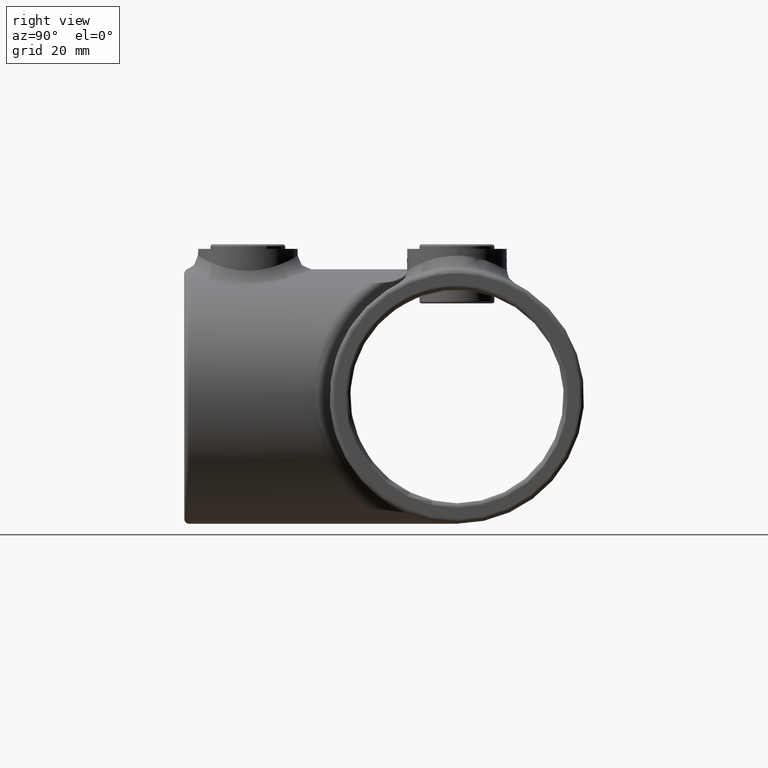
[diagram: clean part render]
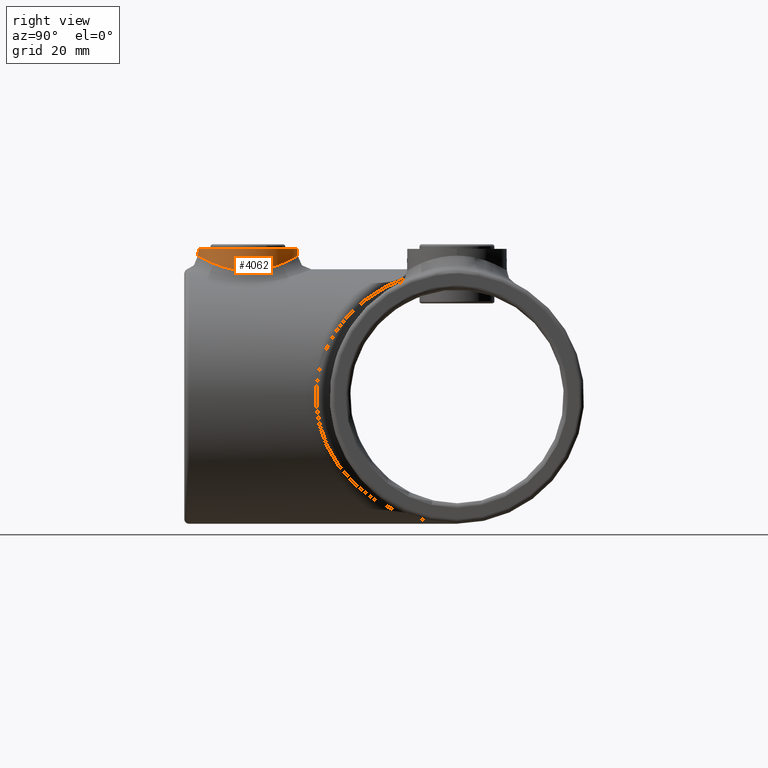
[diagram: same view with one face highlighted and labeled with its STEP entity id]
A machine part, right view. The second image highlights one B-rep face of the part: STEP entity #4062.
In plain terms, the highlighted cylindrical surface (bore or boss wall) has radius 11 mm, axis along (-0, -0, -1).
Its self-contained STEP definition (entity closure, byte-faithful):
#138 = B_SPLINE_CURVE_WITH_KNOTS ( 'NONE', 3,
 ( #4548, #1455, #1075, #2236, #3361, #2606, #4928, #3710, #1061, #3016, #4163, #2591, #3730, #1419, #1832, #1401, #3392, #2201, #4534, #4133, #4900, #2217, #4884, #2624, #4914, #4100, #1438, #4119, #685, #1786, #2170, #3765, #4864, #2560, #1800, #2185, #278, #244, #296, #2955, #4503, #4518, #2574, #637, #259, #2972, #652, #2988, #670, #1125, #3778, #2706, #762, #3796, #731, #3458, #2652, #4957, #4181, #1483, #4624, #1497, #2686, #3847, #4822, #4942, #2249, #1930, #3830, #1161, #4243, #747, #4993, #2314, #3409, #3443, #391, #1543, #4973, #3813, #1106, #4193, #3096, #2296, #1877, #3046, #782, #3082, #4228, #2264, #1091, #1911, #1860, #3062, #4563, #4209, #3424, #2636, #323, #372, #3028, #719, #4610, #4577 ),
 .UNSPECIFIED., .T., .F.,
 ( 4, 2, 2, 2, 2, 2, 2, 2, 2, 2, 2, 2, 2, 2, 2, 2, 2, 2, 2, 2, 2, 2, 2, 2, 2, 2, 2, 2, 2, 2, 2, 2, 2, 2, 2, 2, 2, 2, 2, 2, 2, 2, 2, 2, 2, 2, 2, 2, 2, 2, 2, 4 ),
 ( 0.000000000000000000, 0.001117589833589376341, 0.002235179667178752681, 0.003352769500768129456, 0.004470359334357505363, 0.006705539001536257177, 0.007823128835125630481, 0.008940718668715005521, 0.01117589833589375040, 0.01229348816948312370, 0.01341107800307249701, 0.01452866783666186684, 0.01564625767025124015, 0.01788143733742998676, 0.01899902717101936006, 0.02011661700460873337, 0.02235179667178747651, 0.02346938650537685675, 0.02458697633896623005, 0.02682215600614498013, 0.02905733567332372674, 0.03017492550691310352, 0.03129251534050248029, 0.03352769500768122690, 0.03464528484127060021, 0.03576287467485997351, 0.03688046450844935376, 0.03799805434203872706, 0.03911564417562810037, 0.04023323400921748061, 0.04246841367639624110, 0.04358600350998562828, 0.04470359334357500852, 0.04582118317716439571, 0.04693877301075378289, 0.04917395267793255031, 0.05029154251152193750, 0.05140913234511131774, 0.05252672217870069798, 0.05364431201229007823, 0.05587949167946885259, 0.05699708151305823284, 0.05811467134664762002, 0.06034985101382638745, 0.06146744084741577463, 0.06258503068100515487, 0.06482021034818392924, 0.06593780018177332336, 0.06705539001536270360, 0.06817297984895208385, 0.06929056968254147797, 0.07152574934972026621 ),
 .UNSPECIFIED. ) ;
#244 = CARTESIAN_POINT ( 'NONE',  ( 6.736393003228988263, 5.275344315972384734, 29.80077966393088928 ) ) ;
#259 = CARTESIAN_POINT ( 'NONE',  ( 10.00271630797711353, 9.409301304970862034, 28.26599336670144424 ) ) ;
#263 = EDGE_CURVE ( 'NONE', #2994, #2994, #138, .T. ) ;
#278 = CARTESIAN_POINT ( 'NONE',  ( 5.858282351825009115, 4.683070261025224390, 30.09246352538295355 ) ) ;
#296 = CARTESIAN_POINT ( 'NONE',  ( 7.279523470582170752, 5.722713202712196967, 29.59083671688397743 ) ) ;
#323 = CARTESIAN_POINT ( 'NONE',  ( -10.40099723035340062, 17.59889313069270855, 28.03191317973595176 ) ) ;
#362 = AXIS2_PLACEMENT_3D ( 'NONE', #3485, #4302, #1184 ) ;
#372 = CARTESIAN_POINT ( 'NONE',  ( -10.61636662274304221, 16.90267719243351152, 27.90082399764611409 ) ) ;
#391 = CARTESIAN_POINT ( 'NONE',  ( 1.460709701085554535, 24.90875411239322190, 30.94769925981424663 ) ) ;
#407 = EDGE_LOOP ( 'NONE', ( #4873 ) ) ;
#637 = CARTESIAN_POINT ( 'NONE',  ( 9.846700245738205126, 9.083623808879652373, 28.35490546973456460 ) ) ;
#652 = CARTESIAN_POINT ( 'NONE',  ( 10.63375338134312109, 11.09102641890647867, 27.89045404457614552 ) ) ;
#670 = CARTESIAN_POINT ( 'NONE',  ( 10.90852656195296078, 12.53752375838020860, 27.71730413719675568 ) ) ;
#685 = CARTESIAN_POINT ( 'NONE',  ( 0.7390362551965264926, 3.018577639999326490, 30.98929995297525153 ) ) ;
#719 = CARTESIAN_POINT ( 'NONE',  ( -10.92535819269619957, 15.47300610449268277, 27.70728167135543885 ) ) ;
#731 = CARTESIAN_POINT ( 'NONE',  ( 10.85245980519608011, 15.83297750561373007, 27.75307925416289834 ) ) ;
#747 = CARTESIAN_POINT ( 'NONE',  ( 3.930213740943125700, 24.28024477644219203, 30.59679268643579420 ) ) ;
#749 = FACE_OUTER_BOUND ( 'NONE', #4813, .T. ) ;
#762 = CARTESIAN_POINT ( 'NONE',  ( 10.98179991998642535, 14.73201847971274248, 27.67039568363643198 ) ) ;
#782 = CARTESIAN_POINT ( 'NONE',  ( -5.558211910831236224, 23.51881821504351677, 30.19195585208512256 ) ) ;
#1061 = CARTESIAN_POINT ( 'NONE',  ( -10.28107653602741323, 10.07185953651826793, 28.10375562734972021 ) ) ;
#1075 = CARTESIAN_POINT ( 'NONE',  ( -10.98089488546523107, 13.25520904395013133, 27.67097813196479450 ) ) ;
#1091 = CARTESIAN_POINT ( 'NONE',  ( -7.533655569704126975, 22.02292901475739129, 29.48178887579179630 ) ) ;
#1106 = CARTESIAN_POINT ( 'NONE',  ( -1.478716688698707316, 24.92435608861479324, 30.95620063257527477 ) ) ;
#1125 = CARTESIAN_POINT ( 'NONE',  ( 10.98176486420542908, 13.26813322425531538, 27.67041772405156763 ) ) ;
#1161 = CARTESIAN_POINT ( 'NONE',  ( 5.553547937286819725, 23.52182380606117817, 30.19345434854971444 ) ) ;
#1184 = DIRECTION ( 'NONE',  ( -1.000000000000000000, 0.000000000000000000, 0.000000000000000000 ) ) ;
#1323 = DIRECTION ( 'NONE',  ( 1.000000000000000000, 0.000000000000000000, 0.000000000000000000 ) ) ;
#1401 = CARTESIAN_POINT ( 'NONE',  ( -7.284526126292598214, 5.727520170152812007, 29.58873780110094032 ) ) ;
#1419 = CARTESIAN_POINT ( 'NONE',  ( -8.272189651414588951, 6.740780549602844118, 29.15903630980682593 ) ) ;
#1438 = CARTESIAN_POINT ( 'NONE',  ( -0.7310241073550313162, 2.999808046616649015, 31.00011033097391078 ) ) ;
#1455 = CARTESIAN_POINT ( 'NONE',  ( -10.99999999999999822, 13.62739002608478245, 27.65863337187866122 ) ) ;
#1483 = CARTESIAN_POINT ( 'NONE',  ( 9.859138417151614320, 18.93016448724240064, 28.34957364698804483 ) ) ;
#1497 = CARTESIAN_POINT ( 'NONE',  ( 8.925706386629105538, 20.43882691719116451, 28.84484550194363806 ) ) ;
#1543 = CARTESIAN_POINT ( 'NONE',  ( 0.7306308047756332469, 24.98183808579484477, 30.98953991913306538 ) ) ;
#1562 = ORIENTED_EDGE ( 'NONE', *, *, #263, .T. ) ;
#1786 = CARTESIAN_POINT ( 'NONE',  ( 1.477717375687805701, 3.093389023495518586, 30.94647434299679034 ) ) ;
#1800 = CARTESIAN_POINT ( 'NONE',  ( 4.925490290579039865, 4.157862544420094508, 30.36231712090127033 ) ) ;
#1832 = CARTESIAN_POINT ( 'NONE',  ( -8.032712239399121046, 6.476696541147993536, 29.26761416296676188 ) ) ;
#1852 = CARTESIAN_POINT ( 'NONE',  ( -11.00000000000000000, 14.00000000000000000, 27.65863337187866478 ) ) ;
#1860 = CARTESIAN_POINT ( 'NONE',  ( -8.725355520239469698, 20.73608644244830046, 28.94783281200644964 ) ) ;
#1877 = CARTESIAN_POINT ( 'NONE',  ( -3.940955601041637113, 24.27609570907501890, 30.59453536476922864 ) ) ;
#1911 = CARTESIAN_POINT ( 'NONE',  ( -8.278352063823406937, 21.27752100529225743, 29.16222835254743728 ) ) ;
#1930 = CARTESIAN_POINT ( 'NONE',  ( 6.726474917431644940, 22.71089435815012436, 29.79666630112964754 ) ) ;
#2091 = DIRECTION ( 'NONE',  ( -0.000000000000000000, 0.000000000000000000, 1.000000000000000000 ) ) ;
#2170 = CARTESIAN_POINT ( 'NONE',  ( 1.840471648651563985, 3.148957975270533449, 30.91473357231910413 ) ) ;
#2185 = CARTESIAN_POINT ( 'NONE',  ( 5.554927240253316967, 4.498899660954579716, 30.18583503592627437 ) ) ;
#2201 = CARTESIAN_POINT ( 'NONE',  ( -5.858255320951867517, 4.682963450480778000, 30.09250452395511743 ) ) ;
#2217 = CARTESIAN_POINT ( 'NONE',  ( -3.932228471412397397, 3.720568437388289240, 30.59635279859019619 ) ) ;
#2236 = CARTESIAN_POINT ( 'NONE',  ( -10.90680496004517330, 12.52474693107112458, 27.71840270969228825 ) ) ;
#2249 = CARTESIAN_POINT ( 'NONE',  ( 7.272279505835506974, 22.26069586189284877, 29.58825508281303129 ) ) ;
#2264 = CARTESIAN_POINT ( 'NONE',  ( -7.272948808919633024, 22.26016083731339279, 29.58800463180914520 ) ) ;
#2296 = CARTESIAN_POINT ( 'NONE',  ( -3.597639152526327599, 24.40146437619906550, 30.66325785067828136 ) ) ;
#2314 = CARTESIAN_POINT ( 'NONE',  ( 2.888201909546731283, 24.62033576523400313, 30.78454956559421163 ) ) ;
#2398 = CARTESIAN_POINT ( 'NONE',  ( 11.00000000000000000, 14.00000000000000000, 32.50000000000000000 ) ) ;
#2560 = CARTESIAN_POINT ( 'NONE',  ( 4.597473200593350739, 4.000319932015578672, 30.44580498574952188 ) ) ;
#2574 = CARTESIAN_POINT ( 'NONE',  ( 9.506054282487800933, 8.453542341238762248, 28.54258789292100928 ) ) ;
#2591 = CARTESIAN_POINT ( 'NONE',  ( -8.932496932497684838, 7.570789001251909234, 28.84141251823735885 ) ) ;
#2606 = CARTESIAN_POINT ( 'NONE',  ( -10.70759382829174555, 11.45467258672808164, 27.84407077869100888 ) ) ;
#2624 = CARTESIAN_POINT ( 'NONE',  ( -2.898832184154956249, 3.382617572985635590, 30.78290019848252257 ) ) ;
#2636 = CARTESIAN_POINT ( 'NONE',  ( -10.27734565713192616, 17.93755392634665569, 28.10595386603114676 ) ) ;
#2652 = CARTESIAN_POINT ( 'NONE',  ( 10.61367390974990421, 16.91237594643623154, 27.90248314000591279 ) ) ;
#2686 = CARTESIAN_POINT ( 'NONE',  ( 8.712854293742744005, 20.72385915649076793, 28.95038340208916239 ) ) ;
#2706 = CARTESIAN_POINT ( 'NONE',  ( 11.00000853917586774, 14.36571456471796182, 27.65862787079023732 ) ) ;
#2955 = CARTESIAN_POINT ( 'NONE',  ( 8.283987180983078957, 6.728102374990434065, 29.15981432188111810 ) ) ;
#2972 = CARTESIAN_POINT ( 'NONE',  ( 10.41973144074670188, 10.40214106886206835, 28.02293164483837629 ) ) ;
#2988 = CARTESIAN_POINT ( 'NONE',  ( 10.85292989589972024, 12.17007589163704040, 27.75277930882822019 ) ) ;
#2994 = VERTEX_POINT ( 'NONE', #1852 ) ;
#3016 = CARTESIAN_POINT ( 'NONE',  ( -9.860697777945350850, 9.071518662508008646, 28.34875533875848674 ) ) ;
#3028 = CARTESIAN_POINT ( 'NONE',  ( -10.70743084273553869, 16.54641402833131281, 27.84417494370757140 ) ) ;
#3046 = CARTESIAN_POINT ( 'NONE',  ( -4.934918644571285817, 23.85716360101972100, 30.36915078004054536 ) ) ;
#3062 = CARTESIAN_POINT ( 'NONE',  ( -9.321899703245462021, 19.85054341931666144, 28.64113135651148667 ) ) ;
#3082 = CARTESIAN_POINT ( 'NONE',  ( -6.439320610375791176, 22.92527618849843307, 29.89954893002052216 ) ) ;
#3096 = CARTESIAN_POINT ( 'NONE',  ( -2.899562535792088003, 24.61725038520613396, 30.78282336869645164 ) ) ;
#3361 = CARTESIAN_POINT ( 'NONE',  ( -10.85187182262118277, 12.16475201189990507, 27.75344465467981436 ) ) ;
#3392 = CARTESIAN_POINT ( 'NONE',  ( -6.742117537441656872, 5.279383451069915800, 29.79881378489962884 ) ) ;
#3397 = VERTEX_POINT ( 'NONE', #2398 ) ;
#3409 = CARTESIAN_POINT ( 'NONE',  ( 2.535348094934944729, 24.71002182660560464, 30.83497497841033308 ) ) ;
#3424 = CARTESIAN_POINT ( 'NONE',  ( -9.999568458205022381, 18.59747706125083511, 28.26779623654945439 ) ) ;
#3443 = CARTESIAN_POINT ( 'NONE',  ( 1.821601814239057315, 24.85423071061323341, 30.91654854465845403 ) ) ;
#3458 = CARTESIAN_POINT ( 'NONE',  ( 10.70552110473753338, 16.55489886991672677, 27.84536875772777975 ) ) ;
#3485 = CARTESIAN_POINT ( 'NONE',  ( 0.000000000000000000, 14.00000000000000000, 32.50000000000000000 ) ) ;
#3617 = CARTESIAN_POINT ( 'NONE',  ( 0.000000000000000000, 14.00000000000000000, 32.50000000000000000 ) ) ;
#3710 = CARTESIAN_POINT ( 'NONE',  ( -10.40534883923674236, 10.41401771332511217, 28.02928773914425165 ) ) ;
#3730 = CARTESIAN_POINT ( 'NONE',  ( -8.721944332732505245, 7.287841203106840027, 28.94596158231492211 ) ) ;
#3765 = CARTESIAN_POINT ( 'NONE',  ( 2.910277874008190935, 3.367028715180358400, 30.79141377582009298 ) ) ;
#3778 = CARTESIAN_POINT ( 'NONE',  ( 10.99999145483125673, 13.63377193113006136, 27.65863887682781552 ) ) ;
#3796 = CARTESIAN_POINT ( 'NONE',  ( 10.90819287161805384, 15.46530161155843963, 27.71751735876943812 ) ) ;
#3813 = CARTESIAN_POINT ( 'NONE',  ( -0.7525329717566467957, 24.99923126166392962, 30.99955814471972104 ) ) ;
#3817 = CIRCLE ( 'NONE', #4054, 11.00000000000000000 ) ;
#3830 = CARTESIAN_POINT ( 'NONE',  ( 6.439484101380109848, 22.92523390894753277, 29.89951923378524867 ) ) ;
#3847 = CARTESIAN_POINT ( 'NONE',  ( 8.264752193400017433, 21.26759816459369645, 29.16244018391297743 ) ) ;
#4054 = AXIS2_PLACEMENT_3D ( 'NONE', #3617, #2091, #1323 ) ;
#4062 = ADVANCED_FACE ( 'NONE', ( #749, #4853 ), #4722, .T. ) ;
#4100 = CARTESIAN_POINT ( 'NONE',  ( -1.458798114125135381, 3.072329062965608149, 30.95808847889171744 ) ) ;
#4119 = CARTESIAN_POINT ( 'NONE',  ( 0.3698361220116541115, 3.000096543284623607, 30.99994450884670982 ) ) ;
#4133 = CARTESIAN_POINT ( 'NONE',  ( -4.918256642335776085, 4.154200123404635292, 30.36423750745059991 ) ) ;
#4163 = CARTESIAN_POINT ( 'NONE',  ( -9.522451764952137410, 8.448429551363330958, 28.53786302791284157 ) ) ;
#4181 = CARTESIAN_POINT ( 'NONE',  ( 10.27486876746875488, 17.94390097001056361, 28.10741767652886125 ) ) ;
#4193 = CARTESIAN_POINT ( 'NONE',  ( -2.546993711802373106, 24.70723413310422956, 30.83340589120066255 ) ) ;
#4209 = CARTESIAN_POINT ( 'NONE',  ( -9.845437705854939381, 18.91873575583027645, 28.35560302222074824 ) ) ;
#4228 = CARTESIAN_POINT ( 'NONE',  ( -6.725176854489880895, 22.71194798602957832, 29.79715683329630949 ) ) ;
#4243 = CARTESIAN_POINT ( 'NONE',  ( 4.927412359878740489, 23.86106780668171723, 30.37120205163698117 ) ) ;
#4302 = DIRECTION ( 'NONE',  ( -0.000000000000000000, -0.000000000000000000, -1.000000000000000000 ) ) ;
#4503 = CARTESIAN_POINT ( 'NONE',  ( 8.730704880266474177, 7.271456073003284004, 28.94513260685407019 ) ) ;
#4518 = CARTESIAN_POINT ( 'NONE',  ( 9.322137492991561913, 8.150010227981654864, 28.64098388470740275 ) ) ;
#4534 = CARTESIAN_POINT ( 'NONE',  ( -5.550111779981825144, 4.496038571229770575, 30.18729095287164554 ) ) ;
#4548 = CARTESIAN_POINT ( 'NONE',  ( -10.99999999999999645, 13.99999999999999822, 27.65863337187866833 ) ) ;
#4563 = CARTESIAN_POINT ( 'NONE',  ( -9.506976999639658032, 19.54472662841695296, 28.54207756733797297 ) ) ;
#4577 = CARTESIAN_POINT ( 'NONE',  ( -10.99999999999999645, 13.99999999999999822, 27.65863337187866833 ) ) ;
#4610 = CARTESIAN_POINT ( 'NONE',  ( -10.99999999999999289, 14.74521994783044399, 27.65863337187867899 ) ) ;
#4624 = CARTESIAN_POINT ( 'NONE',  ( 9.522165598637236883, 19.55295134064376228, 28.53813008005803553 ) ) ;
#4722 = CYLINDRICAL_SURFACE ( 'NONE', #362, 11.00000000000000000 ) ;
#4774 = EDGE_CURVE ( 'NONE', #3397, #3397, #3817, .T. ) ;
#4813 = EDGE_LOOP ( 'NONE', ( #1562 ) ) ;
#4822 = CARTESIAN_POINT ( 'NONE',  ( 8.028737905287552934, 21.52745447037511184, 29.26936083917068387 ) ) ;
#4853 = FACE_OUTER_BOUND ( 'NONE', #407, .T. ) ;
#4864 = CARTESIAN_POINT ( 'NONE',  ( 3.599023273584138316, 3.580380206309075497, 30.67179039249948502 ) ) ;
#4873 = ORIENTED_EDGE ( 'NONE', *, *, #4774, .F. ) ;
#4884 = CARTESIAN_POINT ( 'NONE',  ( -3.593209110449411714, 3.597073204047363859, 30.66406452804745442 ) ) ;
#4900 = CARTESIAN_POINT ( 'NONE',  ( -4.594753064807036935, 3.999131123984751568, 30.44644175746000769 ) ) ;
#4914 = CARTESIAN_POINT ( 'NONE',  ( -2.541278916451177761, 3.291245521524403639, 30.83425931812855225 ) ) ;
#4928 = CARTESIAN_POINT ( 'NONE',  ( -10.61824598374715656, 11.10458886249483257, 27.89965613446703685 ) ) ;
#4942 = CARTESIAN_POINT ( 'NONE',  ( 7.532500669165997920, 22.02400379015271170, 29.48226508450037286 ) ) ;
#4957 = CARTESIAN_POINT ( 'NONE',  ( 10.39835968588918469, 17.60640033256997583, 28.03349790698761623 ) ) ;
#4973 = CARTESIAN_POINT ( 'NONE',  ( 0.3592834195603130665, 25.00037562902811672, 31.00021590398306515 ) ) ;
#4993 = CARTESIAN_POINT ( 'NONE',  ( 3.585921937625026867, 24.40549882965144590, 30.66547724519486806 ) ) ;